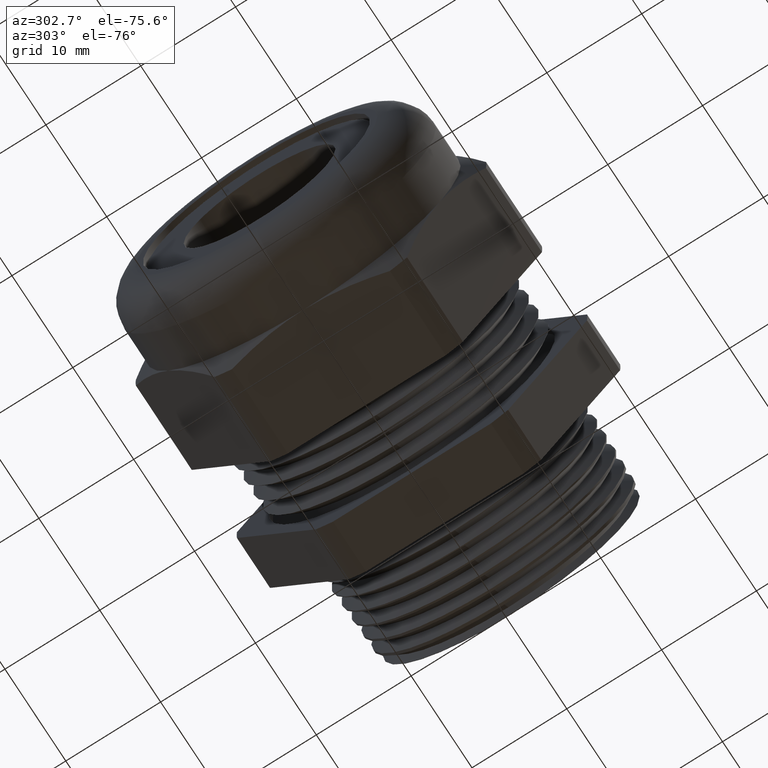
[diagram: clean part render]
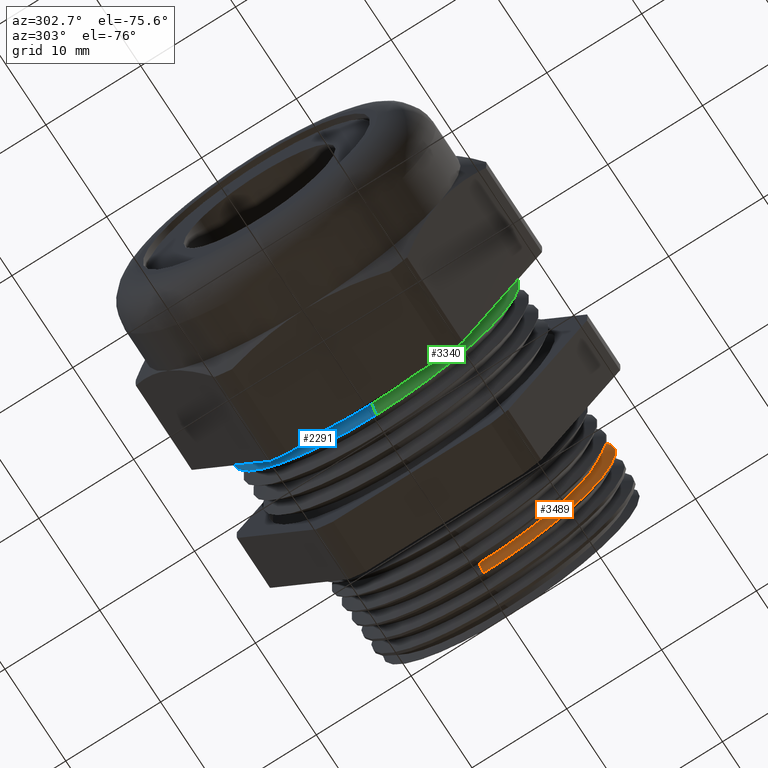
[diagram: same view with three faces highlighted in distinct colors, each labeled with its STEP entity id]
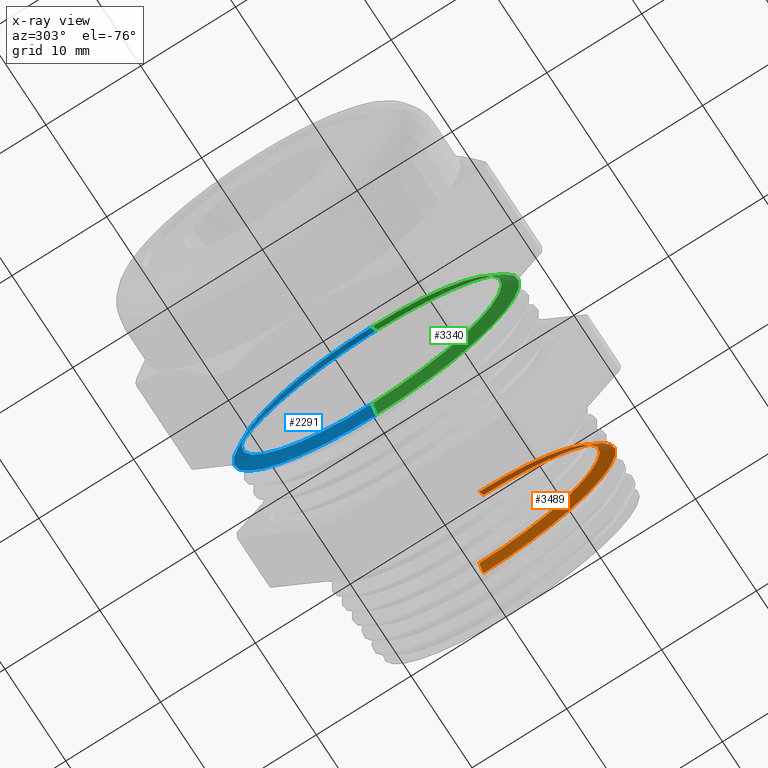
[diagram: x-ray of the same camera — body ghosted, the three highlighted faces saturated]
A machine part, auxiliary view with three faces highlighted in distinct colors.
The next image is the same camera in x-ray (body ghosted, the three faces saturated) — at least one of them is partly hidden behind the body in this view.
Their STEP definitions:

[orange] entity #3489 — the highlighted conical surface has half-angle 60 deg.
#215 = EDGE_CURVE ( 'NONE', #3130, #3049, #868, .T. ) ;
#864 = DIRECTION ( 'NONE',  ( 0.0000000000000000000, 0.0000000000000000000, -1.000000000000000000 ) ) ;
#865 = DIRECTION ( 'NONE',  ( -1.000000000000000000, 0.0000000000000000000, 0.0000000000000000000 ) ) ;
#866 = CARTESIAN_POINT ( 'NONE',  ( 0.2482205725359209200, 0.0000000000000000000, 0.0000000000000000000 ) ) ;
#867 = AXIS2_PLACEMENT_3D ( 'NONE', #866, #865, #864 ) ;
#868 = CIRCLE ( 'NONE', #867, 0.5485001155557157600 ) ;
#1808 = CARTESIAN_POINT ( 'NONE',  ( 0.2482205725359209200, 0.0000000000000000000, 0.5485001155557157600 ) ) ;
#1809 = CARTESIAN_POINT ( 'NONE',  ( 0.2204866412847641400, 6.432080283413133600E-017, -0.5004635375350921000 ) ) ;
#1810 = CARTESIAN_POINT ( 'NONE',  ( 0.2204866412847641400, 0.0000000000000000000, 0.5004635375350921000 ) ) ;
#2006 = CARTESIAN_POINT ( 'NONE',  ( 0.2482205725359209200, 6.717189108472606700E-017, -0.5485001155557157600 ) ) ;
#2012 = DIRECTION ( 'NONE',  ( 0.5000000000000016700, 1.060575238724905900E-016, 0.8660254037844377100 ) ) ;
#2013 = VECTOR ( 'NONE', #2012, 39.37007874015748100 ) ;
#2014 = CARTESIAN_POINT ( 'NONE',  ( 0.2204866412847641400, 6.128910693323117900E-017, 0.5004635375350921000 ) ) ;
#2016 = LINE ( 'NONE', #2014, #2013 ) ;
#2050 = DIRECTION ( 'NONE',  ( 0.5000000000000016700, 0.0000000000000000000, -0.8660254037844377100 ) ) ;
#2051 = VECTOR ( 'NONE', #2050, 39.37007874015748100 ) ;
#2052 = CARTESIAN_POINT ( 'NONE',  ( 0.2204866412847641400, 0.0000000000000000000, -0.5004635375350921000 ) ) ;
#2053 = LINE ( 'NONE', #2052, #2051 ) ;
#2055 = DIRECTION ( 'NONE',  ( -1.000000000000000000, 0.0000000000000000000, 0.0000000000000000000 ) ) ;
#2056 = AXIS2_PLACEMENT_3D ( 'NONE', #2062, #2055, #2313 ) ;
#2062 = CARTESIAN_POINT ( 'NONE',  ( 0.2204866412847641400, 0.0000000000000000000, 0.0000000000000000000 ) ) ;
#2313 = DIRECTION ( 'NONE',  ( 0.0000000000000000000, 0.0000000000000000000, 1.000000000000000000 ) ) ;
#2585 = CIRCLE ( 'NONE', #2056, 0.5004635375350921000 ) ;
#2655 = FACE_OUTER_BOUND ( 'NONE', #3488, .T. ) ;
#2714 = DIRECTION ( 'NONE',  ( 0.0000000000000000000, 0.0000000000000000000, -1.000000000000000000 ) ) ;
#2715 = DIRECTION ( 'NONE',  ( 1.000000000000000000, 0.0000000000000000000, 0.0000000000000000000 ) ) ;
#2716 = CARTESIAN_POINT ( 'NONE',  ( 0.2204866412847641400, 0.0000000000000000000, 0.0000000000000000000 ) ) ;
#2717 = AXIS2_PLACEMENT_3D ( 'NONE', #2716, #2715, #2714 ) ;
#2718 = CONICAL_SURFACE ( 'NONE', #2717, 0.5004635375350921000, 1.047197551196595900 ) ;
#3046 = VERTEX_POINT ( 'NONE', #1810 ) ;
#3047 = VERTEX_POINT ( 'NONE', #1809 ) ;
#3049 = VERTEX_POINT ( 'NONE', #1808 ) ;
#3127 = EDGE_CURVE ( 'NONE', #3046, #3049, #2016, .T. ) ;
#3130 = VERTEX_POINT ( 'NONE', #2006 ) ;
#3139 = EDGE_CURVE ( 'NONE', #3047, #3130, #2053, .T. ) ;
#3453 = EDGE_CURVE ( 'NONE', #3047, #3046, #2585, .T. ) ;
#3487 = ORIENTED_EDGE ( 'NONE', *, *, #3127, .F. ) ;
#3488 = EDGE_LOOP ( 'NONE', ( #3487, #3493, #3490, #3494 ) ) ;
#3489 = ADVANCED_FACE ( 'NONE', ( #2655 ), #2718, .T. ) ;
#3490 = ORIENTED_EDGE ( 'NONE', *, *, #3139, .T. ) ;
#3493 = ORIENTED_EDGE ( 'NONE', *, *, #3453, .F. ) ;
#3494 = ORIENTED_EDGE ( 'NONE', *, *, #215, .T. ) ;

[blue] entity #2291 — the highlighted conical surface has half-angle 60 deg.
#1511 = DIRECTION ( 'NONE',  ( 0.0000000000000000000, 0.0000000000000000000, -1.000000000000000000 ) ) ;
#1512 = DIRECTION ( 'NONE',  ( 1.000000000000000000, 0.0000000000000000000, 0.0000000000000000000 ) ) ;
#1513 = AXIS2_PLACEMENT_3D ( 'NONE', #1515, #1512, #1511 ) ;
#1514 = CONICAL_SURFACE ( 'NONE', #1513, 0.5399064500000000400, 1.047197551196598300 ) ;
#1515 = CARTESIAN_POINT ( 'NONE',  ( -0.4748333477870873600, 0.0000000000000000000, 0.0000000000000000000 ) ) ;
#1516 = FACE_OUTER_BOUND ( 'NONE', #2069, .T. ) ;
#1518 = CARTESIAN_POINT ( 'NONE',  ( -0.4438333622408407500, 7.269503399738688800E-017, -0.5936000000000000200 ) ) ;
#1524 = CARTESIAN_POINT ( 'NONE',  ( -0.4438333622408407500, 0.0000000000000000000, 0.5936000000000000200 ) ) ;
#1525 = DIRECTION ( 'NONE',  ( 0.4999999999999994400, 1.060575238724907300E-016, 0.8660254037844389300 ) ) ;
#1526 = VECTOR ( 'NONE', #1525, 39.37007874015748100 ) ;
#1527 = CARTESIAN_POINT ( 'NONE',  ( -0.4748333477870873600, 6.611947058315105100E-017, 0.5399064500000000400 ) ) ;
#1528 = LINE ( 'NONE', #1527, #1526 ) ;
#1860 = ORIENTED_EDGE ( 'NONE', *, *, #3532, .T. ) ;
#1889 = ORIENTED_EDGE ( 'NONE', *, *, #1956, .T. ) ;
#1956 = EDGE_CURVE ( 'NONE', #3513, #2026, #1528, .T. ) ;
#2026 = VERTEX_POINT ( 'NONE', #1524 ) ;
#2069 = EDGE_LOOP ( 'NONE', ( #1860, #1889, #3514, #3519 ) ) ;
#2091 = VERTEX_POINT ( 'NONE', #1518 ) ;
#2291 = ADVANCED_FACE ( 'NONE', ( #1516 ), #1514, .T. ) ;
#2688 = CIRCLE ( 'NONE', #2752, 0.5936000000000000200 ) ;
#2689 = CARTESIAN_POINT ( 'NONE',  ( -0.4748333477870873600, 6.940725229026897000E-017, 0.5399064500000000400 ) ) ;
#2739 = DIRECTION ( 'NONE',  ( 0.4999999999999994400, 0.0000000000000000000, -0.8660254037844389300 ) ) ;
#2740 = VECTOR ( 'NONE', #2739, 39.37007874015748100 ) ;
#2741 = CARTESIAN_POINT ( 'NONE',  ( -0.4748333477870873600, 0.0000000000000000000, -0.5399064500000000400 ) ) ;
#2746 = LINE ( 'NONE', #2741, #2740 ) ;
#2749 = DIRECTION ( 'NONE',  ( 0.0000000000000000000, 0.0000000000000000000, -1.000000000000000000 ) ) ;
#2750 = DIRECTION ( 'NONE',  ( 1.000000000000000000, 0.0000000000000000000, 0.0000000000000000000 ) ) ;
#2751 = CARTESIAN_POINT ( 'NONE',  ( -0.4438333622408407500, 0.0000000000000000000, 0.0000000000000000000 ) ) ;
#2752 = AXIS2_PLACEMENT_3D ( 'NONE', #2751, #2750, #2749 ) ;
#2775 = DIRECTION ( 'NONE',  ( 0.0000000000000000000, 0.0000000000000000000, -1.000000000000000000 ) ) ;
#2776 = DIRECTION ( 'NONE',  ( 1.000000000000000000, 0.0000000000000000000, 0.0000000000000000000 ) ) ;
#2777 = CARTESIAN_POINT ( 'NONE',  ( -0.4748333477870873600, 0.0000000000000000000, 0.0000000000000000000 ) ) ;
#2778 = AXIS2_PLACEMENT_3D ( 'NONE', #2777, #2776, #2775 ) ;
#2780 = CIRCLE ( 'NONE', #2778, 0.5399064500000000400 ) ;
#2782 = CARTESIAN_POINT ( 'NONE',  ( -0.4748333477870873600, 0.0000000000000000000, -0.5399064500000000400 ) ) ;
#3513 = VERTEX_POINT ( 'NONE', #2689 ) ;
#3514 = ORIENTED_EDGE ( 'NONE', *, *, #3515, .F. ) ;
#3515 = EDGE_CURVE ( 'NONE', #2091, #2026, #2688, .T. ) ;
#3517 = EDGE_CURVE ( 'NONE', #3531, #2091, #2746, .T. ) ;
#3519 = ORIENTED_EDGE ( 'NONE', *, *, #3517, .F. ) ;
#3531 = VERTEX_POINT ( 'NONE', #2782 ) ;
#3532 = EDGE_CURVE ( 'NONE', #3531, #3513, #2780, .T. ) ;

[green] entity #3340 — the highlighted conical surface has half-angle 60 deg.
#1518 = CARTESIAN_POINT ( 'NONE',  ( -0.4438333622408407500, 7.269503399738688800E-017, -0.5936000000000000200 ) ) ;
#1524 = CARTESIAN_POINT ( 'NONE',  ( -0.4438333622408407500, 0.0000000000000000000, 0.5936000000000000200 ) ) ;
#1525 = DIRECTION ( 'NONE',  ( 0.4999999999999994400, 1.060575238724907300E-016, 0.8660254037844389300 ) ) ;
#1526 = VECTOR ( 'NONE', #1525, 39.37007874015748100 ) ;
#1527 = CARTESIAN_POINT ( 'NONE',  ( -0.4748333477870873600, 6.611947058315105100E-017, 0.5399064500000000400 ) ) ;
#1528 = LINE ( 'NONE', #1527, #1526 ) ;
#1956 = EDGE_CURVE ( 'NONE', #3513, #2026, #1528, .T. ) ;
#2026 = VERTEX_POINT ( 'NONE', #1524 ) ;
#2091 = VERTEX_POINT ( 'NONE', #1518 ) ;
#2424 = DIRECTION ( 'NONE',  ( 0.0000000000000000000, 0.0000000000000000000, -1.000000000000000000 ) ) ;
#2425 = DIRECTION ( 'NONE',  ( 1.000000000000000000, 0.0000000000000000000, 0.0000000000000000000 ) ) ;
#2426 = CARTESIAN_POINT ( 'NONE',  ( -0.4748333477870873600, 0.0000000000000000000, 0.0000000000000000000 ) ) ;
#2427 = AXIS2_PLACEMENT_3D ( 'NONE', #2426, #2425, #2424 ) ;
#2429 = CONICAL_SURFACE ( 'NONE', #2427, 0.5399064500000000400, 1.047197551196598300 ) ;
#2430 = FACE_OUTER_BOUND ( 'NONE', #3342, .T. ) ;
#2431 = DIRECTION ( 'NONE',  ( 0.0000000000000000000, 0.0000000000000000000, -1.000000000000000000 ) ) ;
#2432 = DIRECTION ( 'NONE',  ( 1.000000000000000000, 0.0000000000000000000, 0.0000000000000000000 ) ) ;
#2433 = AXIS2_PLACEMENT_3D ( 'NONE', #2439, #2432, #2431 ) ;
#2434 = CIRCLE ( 'NONE', #2433, 0.5399064500000000400 ) ;
#2439 = CARTESIAN_POINT ( 'NONE',  ( -0.4748333477870873600, 0.0000000000000000000, 0.0000000000000000000 ) ) ;
#2689 = CARTESIAN_POINT ( 'NONE',  ( -0.4748333477870873600, 6.940725229026897000E-017, 0.5399064500000000400 ) ) ;
#2739 = DIRECTION ( 'NONE',  ( 0.4999999999999994400, 0.0000000000000000000, -0.8660254037844389300 ) ) ;
#2740 = VECTOR ( 'NONE', #2739, 39.37007874015748100 ) ;
#2741 = CARTESIAN_POINT ( 'NONE',  ( -0.4748333477870873600, 0.0000000000000000000, -0.5399064500000000400 ) ) ;
#2746 = LINE ( 'NONE', #2741, #2740 ) ;
#2782 = CARTESIAN_POINT ( 'NONE',  ( -0.4748333477870873600, 0.0000000000000000000, -0.5399064500000000400 ) ) ;
#2838 = DIRECTION ( 'NONE',  ( 0.0000000000000000000, 0.0000000000000000000, -1.000000000000000000 ) ) ;
#2839 = DIRECTION ( 'NONE',  ( 1.000000000000000000, 0.0000000000000000000, 0.0000000000000000000 ) ) ;
#2840 = AXIS2_PLACEMENT_3D ( 'NONE', #2847, #2839, #2838 ) ;
#2841 = CIRCLE ( 'NONE', #2840, 0.5936000000000000200 ) ;
#2847 = CARTESIAN_POINT ( 'NONE',  ( -0.4438333622408407500, 0.0000000000000000000, 0.0000000000000000000 ) ) ;
#3335 = ORIENTED_EDGE ( 'NONE', *, *, #3585, .F. ) ;
#3336 = ORIENTED_EDGE ( 'NONE', *, *, #3337, .T. ) ;
#3337 = EDGE_CURVE ( 'NONE', #3513, #3531, #2434, .T. ) ;
#3338 = ORIENTED_EDGE ( 'NONE', *, *, #3517, .T. ) ;
#3340 = ADVANCED_FACE ( 'NONE', ( #2430 ), #2429, .T. ) ;
#3341 = ORIENTED_EDGE ( 'NONE', *, *, #1956, .F. ) ;
#3342 = EDGE_LOOP ( 'NONE', ( #3341, #3336, #3338, #3335 ) ) ;
#3513 = VERTEX_POINT ( 'NONE', #2689 ) ;
#3517 = EDGE_CURVE ( 'NONE', #3531, #2091, #2746, .T. ) ;
#3531 = VERTEX_POINT ( 'NONE', #2782 ) ;
#3585 = EDGE_CURVE ( 'NONE', #2026, #2091, #2841, .T. ) ;